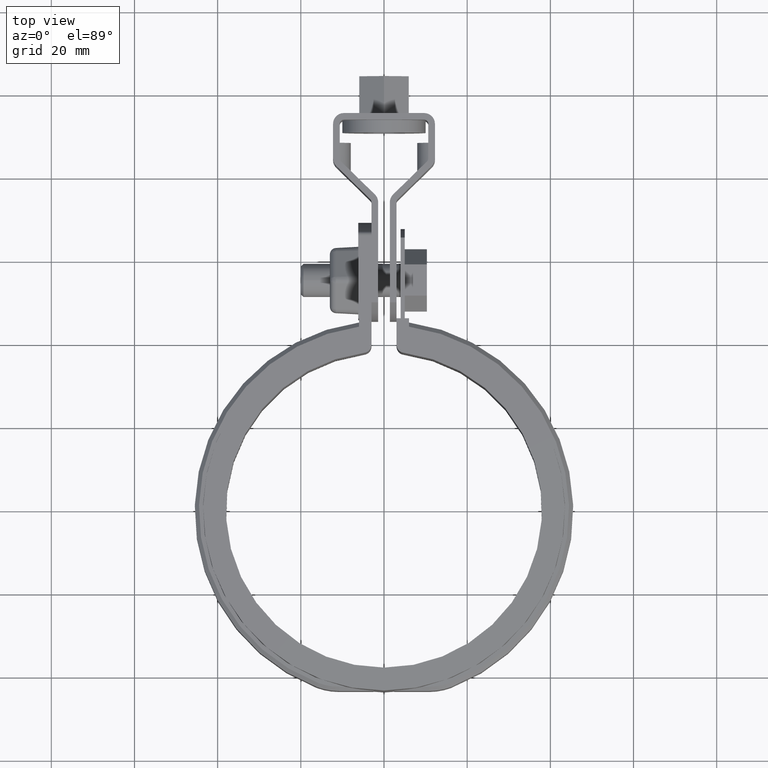
[diagram: clean part render]
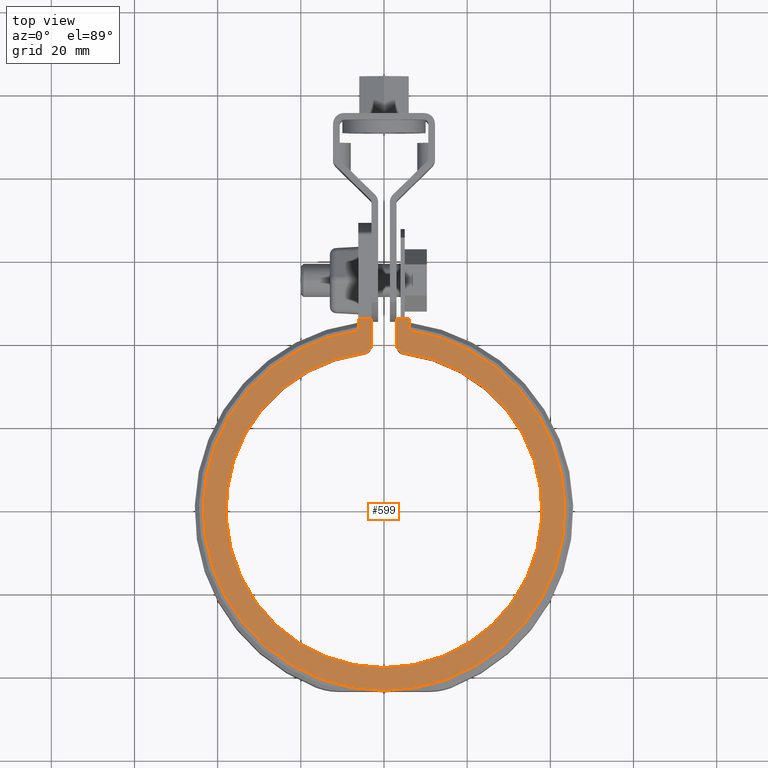
[diagram: same view with one face highlighted and labeled with its STEP entity id]
A machine part, top view. The second image highlights one B-rep face of the part: STEP entity #599.
In plain terms, the highlighted planar face has unit normal (0, 0, -1).
Its self-contained STEP definition (entity closure, byte-faithful):
#599 = ADVANCED_FACE( '', ( #1109 ), #1110, .F. );
#1109 = FACE_OUTER_BOUND( '', #2417, .T. );
#1110 = PLANE( '', #2418 );
#2417 = EDGE_LOOP( '', ( #5402, #5403, #5404, #5405, #5406, #5407, #5408, #5409, #5410, #5411 ) );
#2418 = AXIS2_PLACEMENT_3D( '', #5412, #5413, #5414 );
#5402 = ORIENTED_EDGE( '', *, *, #7499, .F. );
#5403 = ORIENTED_EDGE( '', *, *, #7635, .F. );
#5404 = ORIENTED_EDGE( '', *, *, #7624, .F. );
#5405 = ORIENTED_EDGE( '', *, *, #7566, .F. );
#5406 = ORIENTED_EDGE( '', *, *, #7592, .F. );
#5407 = ORIENTED_EDGE( '', *, *, #7594, .T. );
#5408 = ORIENTED_EDGE( '', *, *, #7645, .T. );
#5409 = ORIENTED_EDGE( '', *, *, #7507, .T. );
#5410 = ORIENTED_EDGE( '', *, *, #7564, .T. );
#5411 = ORIENTED_EDGE( '', *, *, #7646, .T. );
#5412 = CARTESIAN_POINT( '', ( 0.000000000000000, 0.000000000000000, 14.0000000000000 ) );
#5413 = DIRECTION( '', ( 0.000000000000000, 0.000000000000000, -1.00000000000000 ) );
#5414 = DIRECTION( '', ( 1.00000000000000, -6.07153216591882E-017, 0.000000000000000 ) );
#7499 = EDGE_CURVE( '', #8714, #8716, #8717, .T. );
#7507 = EDGE_CURVE( '', #8731, #8729, #8732, .T. );
#7564 = EDGE_CURVE( '', #8729, #8807, #8809, .F. );
#7566 = EDGE_CURVE( '', #8810, #8813, #8814, .T. );
#7592 = EDGE_CURVE( '', #8858, #8810, #8861, .T. );
#7594 = EDGE_CURVE( '', #8858, #8863, #8864, .T. );
#7624 = EDGE_CURVE( '', #8813, #8910, #8911, .T. );
#7635 = EDGE_CURVE( '', #8910, #8714, #8928, .T. );
#7645 = EDGE_CURVE( '', #8863, #8731, #8940, .F. );
#7646 = EDGE_CURVE( '', #8807, #8716, #8941, .T. );
#8714 = VERTEX_POINT( '', #12384 );
#8716 = VERTEX_POINT( '', #12387 );
#8717 = LINE( '', #12388, #12389 );
#8729 = VERTEX_POINT( '', #12406 );
#8731 = VERTEX_POINT( '', #12409 );
#8732 = CIRCLE( '', #12410, 38.0000000000000 );
#8807 = VERTEX_POINT( '', #12591 );
#8809 = CIRCLE( '', #12594, 2.00000000000000 );
#8810 = VERTEX_POINT( '', #12595 );
#8813 = VERTEX_POINT( '', #12599 );
#8814 = LINE( '', #12600, #12601 );
#8858 = VERTEX_POINT( '', #12667 );
#8861 = LINE( '', #12671, #12672 );
#8863 = VERTEX_POINT( '', #12675 );
#8864 = LINE( '', #12676, #12677 );
#8910 = VERTEX_POINT( '', #12739 );
#8911 = CIRCLE( '', #12740, 43.5000000000000 );
#8928 = LINE( '', #12768, #12769 );
#8940 = CIRCLE( '', #12786, 2.00000000000000 );
#8941 = LINE( '', #12787, #12788 );
#12384 = CARTESIAN_POINT( '', ( -6.00000000000000, 46.0106449468841, 14.0000000000000 ) );
#12387 = CARTESIAN_POINT( '', ( -3.00000000000002, 46.0106449468841, 14.0000000000000 ) );
#12388 = CARTESIAN_POINT( '', ( 0.000000000000000, 46.0106449468841, 14.0000000000000 ) );
#12389 = VECTOR( '', #14534, 1000.00000000000 );
#12406 = CARTESIAN_POINT( '', ( -4.75000000000002, 37.7019561826704, 14.0000000000000 ) );
#12409 = CARTESIAN_POINT( '', ( 4.75000000000000, 37.7019561826704, 14.0000000000000 ) );
#12410 = AXIS2_PLACEMENT_3D( '', #14544, #14545, #14546 );
#12591 = CARTESIAN_POINT( '', ( -3.00000000000002, 39.6862696659689, 14.0000000000000 ) );
#12594 = AXIS2_PLACEMENT_3D( '', #14600, #14601, #14602 );
#12595 = CARTESIAN_POINT( '', ( 6.00000000000000, 46.0106449468841, 14.0000000000000 ) );
#12599 = CARTESIAN_POINT( '', ( 6.00000000000000, 43.0842198490352, 14.0000000000000 ) );
#12600 = CARTESIAN_POINT( '', ( 6.00000000000000, 46.1500000000000, 14.0000000000000 ) );
#12601 = VECTOR( '', #14604, 1000.00000000000 );
#12667 = CARTESIAN_POINT( '', ( 3.00000000000000, 46.0106449468841, 14.0000000000000 ) );
#12671 = CARTESIAN_POINT( '', ( 0.000000000000000, 46.0106449468841, 14.0000000000000 ) );
#12672 = VECTOR( '', #14640, 1000.00000000000 );
#12675 = CARTESIAN_POINT( '', ( 3.00000000000000, 39.6862696659689, 14.0000000000000 ) );
#12676 = CARTESIAN_POINT( '', ( 3.00000000000000, 46.1500000000000, 14.0000000000000 ) );
#12677 = VECTOR( '', #14642, 1000.00000000000 );
#12739 = CARTESIAN_POINT( '', ( -5.99999999999996, 43.0842198490352, 14.0000000000000 ) );
#12740 = AXIS2_PLACEMENT_3D( '', #14698, #14699, #14700 );
#12768 = CARTESIAN_POINT( '', ( -6.00000000000000, 43.0842198490352, 14.0000000000000 ) );
#12769 = VECTOR( '', #14715, 1000.00000000000 );
#12786 = AXIS2_PLACEMENT_3D( '', #14733, #14734, #14735 );
#12787 = CARTESIAN_POINT( '', ( -3.00000000000002, 37.8813938497516, 14.0000000000000 ) );
#12788 = VECTOR( '', #14736, 1000.00000000000 );
#14534 = DIRECTION( '', ( 1.00000000000000, 0.000000000000000, 0.000000000000000 ) );
#14544 = CARTESIAN_POINT( '', ( 0.000000000000000, 0.000000000000000, 14.0000000000000 ) );
#14545 = DIRECTION( '', ( 0.000000000000000, 0.000000000000000, -1.00000000000000 ) );
#14546 = DIRECTION( '', ( 1.00000000000000, -6.07153216591882E-017, 0.000000000000000 ) );
#14600 = CARTESIAN_POINT( '', ( -5.00000000000002, 39.6862696659689, 14.0000000000000 ) );
#14601 = DIRECTION( '', ( 0.000000000000000, 0.000000000000000, -1.00000000000000 ) );
#14602 = DIRECTION( '', ( -1.00000000000000, 0.000000000000000, 0.000000000000000 ) );
#14604 = DIRECTION( '', ( -6.07153216591882E-017, -1.00000000000000, 0.000000000000000 ) );
#14640 = DIRECTION( '', ( 1.00000000000000, 0.000000000000000, 0.000000000000000 ) );
#14642 = DIRECTION( '', ( -6.07153216591882E-017, -1.00000000000000, 0.000000000000000 ) );
#14698 = CARTESIAN_POINT( '', ( 0.000000000000000, 0.000000000000000, 14.0000000000000 ) );
#14699 = DIRECTION( '', ( 0.000000000000000, 0.000000000000000, -1.00000000000000 ) );
#14700 = DIRECTION( '', ( 1.00000000000000, -6.07153216591882E-017, 0.000000000000000 ) );
#14715 = DIRECTION( '', ( 6.07153216591882E-017, 1.00000000000000, 0.000000000000000 ) );
#14733 = CARTESIAN_POINT( '', ( 5.00000000000000, 39.6862696659689, 14.0000000000000 ) );
#14734 = DIRECTION( '', ( 0.000000000000000, 0.000000000000000, -1.00000000000000 ) );
#14735 = DIRECTION( '', ( -1.00000000000000, 0.000000000000000, 0.000000000000000 ) );
#14736 = DIRECTION( '', ( 6.07153216591882E-017, 1.00000000000000, 0.000000000000000 ) );